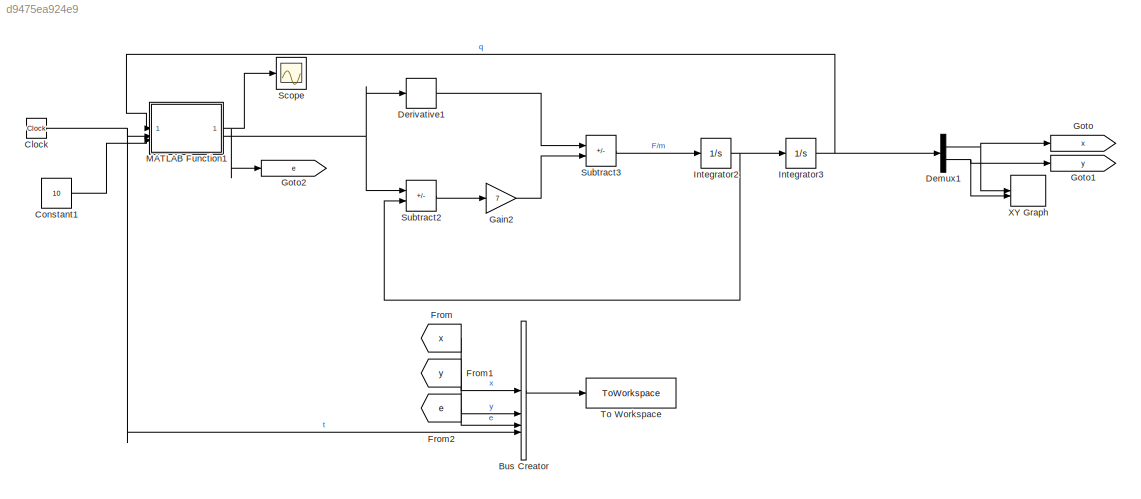
MODEL slx_d9475ea924e9
KIND model
CONFIG AbsTol = auto
CONFIG EnableMultiTasking = off
CONFIG FixedStep = auto
CONFIG MaxStep = auto
CONFIG MinStep = auto
CONFIG RelTol = 1e-3
CONFIG SampleTimeConstraint = Unconstrained
CONFIG SolverName = VariableStepAuto
CONFIG StartTime = 0.0
CONFIG StopTime = 300
BLOCK [BusCreator] Bus Creator
  DisplayOption = bar
  InheritFromInputs = on
  Inputs = 4
BLOCK [Clock] Clock
BLOCK [Constant] Constant1
  Value = 10
BLOCK [Demux] Demux1
  Outputs = 2
BLOCK [Derivative] Derivative1
  CoefficientInTFapproximation = 10
BLOCK [From] From
  GotoTag = x
BLOCK [From] From1
  GotoTag = y
BLOCK [From] From2
  GotoTag = e
BLOCK [Gain] Gain2
  Gain = 7
BLOCK [Goto] Goto
  GotoTag = x
BLOCK [Goto] Goto1
  GotoTag = y
BLOCK [Goto] Goto2
  GotoTag = e
BLOCK [Integrator] Integrator2
BLOCK [Integrator] Integrator3
  InitialCondition = [-10;-4]
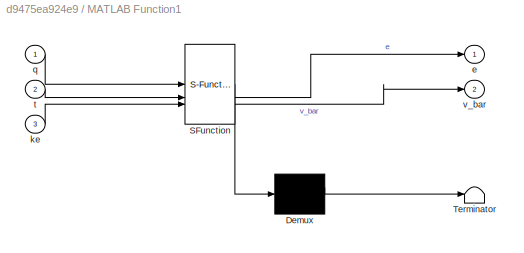
BLOCK [SubSystem] MATLAB Function1
  ErrorFcn = Stateflow.Translate.translate
  LibrarySourceBlock = simulink/User-Defined\nFunctions/MATLAB Function
  PermitHierarchicalResolution = ExplicitOnly
  SFBlockType = MATLAB Function
  TreatAsAtomicUnit = on
BLOCK [Demux] MATLAB Function1/ Demux 
  Outputs = 1
BLOCK [S-Function] MATLAB Function1/ SFunction 
  EnableBusSupport = on
  FunctionName = sf_sfun
  PortCounts = [3 3]
  SFcnIsStateOwnerBlock = off
  SFunctionDeploymentMode = off
  Tag = Stateflow S-Function 1
BLOCK [Terminator] MATLAB Function1/ Terminator 
BLOCK [Outport] MATLAB Function1/e
BLOCK [Inport] MATLAB Function1/ke
  Port = 3
BLOCK [Inport] MATLAB Function1/q
BLOCK [Inport] MATLAB Function1/t
  Port = 2
BLOCK [Outport] MATLAB Function1/v_bar
  Port = 2
BLOCK [Scope] Scope
  Floating = off
  NumInputPorts = 1
  ScopeSpecificationString = Simulink.scopes.TimeScopeBlockCfg('CurrentConfiguration', extmgr.ConfigurationSet(extmgr.Configuration('Core','General UI',true),extmgr.Configuration('Core','Source UI',true),extmgr.Configuration('Sources','WiredSimulink',true),extmgr.Configuration('Visuals','Time Domain',true,'SerializedDisplays',{struct('MinYLimReal','-2.10811','MaxYLimReal','15.40209','YLabelReal','','MinYLimMag','0.00000','Max...<+1373ch>
BLOCK [Sum] Subtract2
  IconShape = rectangular
  Inputs = -+
BLOCK [Sum] Subtract3
  IconShape = rectangular
  Inputs = +-
BLOCK [ToWorkspace] To Workspace
  FixptAsFi = on
  MaxDataPoints = inf
  SampleTime = -1
  SaveFormat = Timeseries
  VariableName = simout
BLOCK [Record] XY Graph
  CompatibilityTag = XY
  FileSettingsInternal = {"entries":[{"content":{"excelSettings":{"content":{},"type":"Streamout.ExcelSettings"}},"type":"Streamout.FileSettingStorage","uuid":"0ca1af2c-9ce1-40c9-a08a-d62fa3706bdb"}],"packageUris":["http://schema.mathworks.com/mf0/streamout_blocks/R2020a"],"version":"1.0"}
  Layout = [1 1]
  SignalsInternal = {"entries":[{"content":{"signals":[{"content":{"blockPath":["LAB5/XY Graph"],"channel":[],"dimensions":[1,1],"domain":"LAB5/XY Graph","lineColor":"#a2142f","plots":[1],"port":1,"sid":[""],"signalID":19,"signalName":"Demux1:1"},"type":"RecordBlkView.Signal","uuid":"7c19cbd7-0587-451a-8c96-17d83656151c"},{"content":{"blockPath":["LAB5/XY Graph"],"channel":[],"dimensions":[1,1],"domain":"LAB5/XY Grap...<+349ch>
  VisualizationBindings = {"xyplotplugin":{"info":[{"series":[{"bindingParametersList":[{"parameter":"X-Axis","signalID":19,"signalName":"Demux1:1"},{"parameter":"Y-Axis","signalID":23,"signalName":"Demux1:2"}],"seriesID":15178}],"subplotID":1}]}}
LINE Bus Creator:1 -> To Workspace:1
NET Clock:1 -> Bus Creator:4, MATLAB Function1:2
LINE Constant1:1 -> MATLAB Function1:3
NET Demux1:1 -> Goto:1, XY Graph:1
NET Demux1:2 -> Goto1:1, XY Graph:2
LINE Derivative1:1 -> Subtract3:1
LINE From1:1 -> Bus Creator:2
LINE From2:1 -> Bus Creator:3
LINE From:1 -> Bus Creator:1
LINE Gain2:1 -> Subtract3:2
NET Integrator2:1 -> Integrator3:1, Subtract2:2
NET Integrator3:1 -> Demux1:1, MATLAB Function1:1
NET MATLAB Function1:1 -> Goto2:1, Scope:1
NET MATLAB Function1:2 -> Derivative1:1, Subtract2:1
LINE Subtract2:1 -> Gain2:1
LINE Subtract3:1 -> Integrator2:1
note: NET lines group one-source signal fan-out (src -> all destinations, sorted); 1:1 wires keep LINE
CHART MATLAB Function1 states=1 transitions=1
  STATE_LABEL 'eML_blk_kernel()'
  STATE_LABEL 'SCRIPT:\nfunction [e, v_bar] = fcn(q, t, ke)\n\nx = q(1);\ny = q(2);\n\ns_star = 2;\ns = 2;\n\n\nif(t<60*s_star/s)\n    u_s = [(sqrt(2.0).*(x-y+2.0).*(-1.0./2.0))./(x.*1.4e+1+y.*1.0e+1+x.^2+y.^2+7.4e+1);\n           (sqrt(2.0).*(x+y+1.2e+1).*(-1.0./2.0))./(x.*1.4e+1+y.*1.0e+1+x.^2+y.^2+7.4e+1)];\n\n    u_e = [-ke.*(x.*2.0+1.4e+1).*((x+7.0).^2+(y+5.0).^2-2.5e+1./4.0);\n           -ke.*(y.*2.0+1.0e+1).*((x+7.0).^2...<+766ch>'
CHART  states=0 transitions=0
